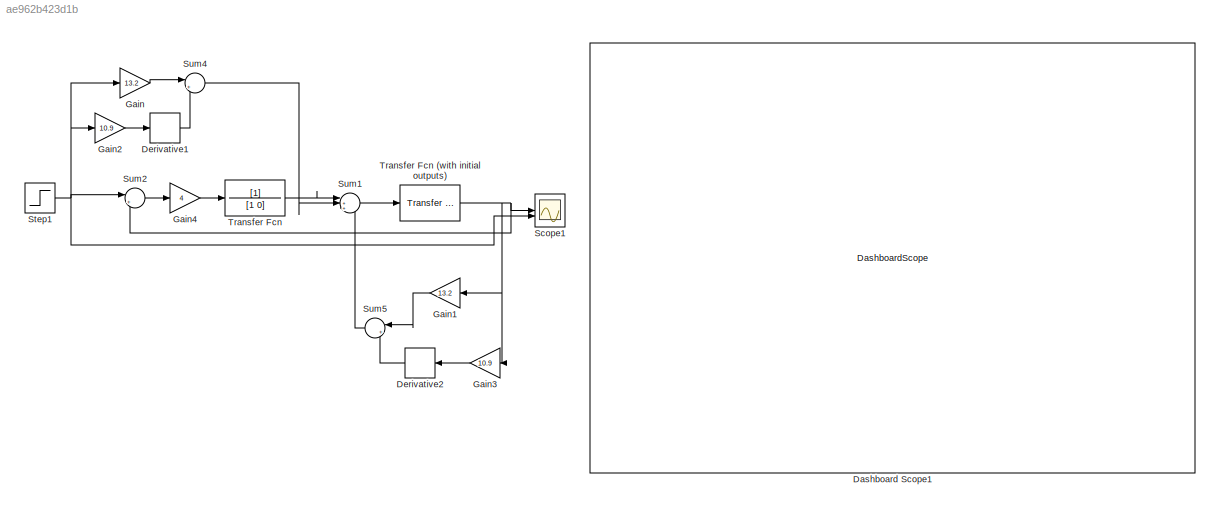
MODEL slx_ae962b423d1b
KIND model
CONFIG AbsTol = auto
CONFIG EnableMultiTasking = off
CONFIG FixedStep = auto
CONFIG MaxStep = auto
CONFIG MinStep = auto
CONFIG RelTol = 1e-3
CONFIG SampleTimeConstraint = Unconstrained
CONFIG SolverName = VariableStepAuto
CONFIG StartTime = 0.0
CONFIG StopTime = 35
BLOCK [DashboardScope] Dashboard Scope1
BLOCK [Derivative] Derivative1
BLOCK [Derivative] Derivative2
  NameLocation = top
BLOCK [Gain] Gain
  Gain = 13.2
BLOCK [Gain] Gain1
  Gain = 13.2
  NameLocation = top
BLOCK [Gain] Gain2
  Gain = 10.9
BLOCK [Gain] Gain3
  Gain = 10.9
  NameLocation = top
BLOCK [Gain] Gain4
  Gain = 4
BLOCK [Scope] Scope1
  Floating = off
  NumInputPorts = 2
  ScopeSpecificationString = Simulink.scopes.TimeScopeBlockCfg('CurrentConfiguration', extmgr.ConfigurationSet(extmgr.Configuration('Core','General UI',true,'FigureColor',[1 1 1]),extmgr.Configuration('Core','Source UI',true),extmgr.Configuration('Sources','WiredSimulink',true),extmgr.Configuration('Visuals','Time Domain',true,'SerializedDisplays',{struct('MinYLimReal','-0.15377','MaxYLimReal','1.38397','YLabelReal','','MinYL...<+1610ch>
BLOCK [Step] Step1
  SampleTime = 0
BLOCK [Sum] Sum1
  Inputs = |++-
BLOCK [Sum] Sum2
  Inputs = |+-
BLOCK [Sum] Sum4
  Inputs = |++
BLOCK [Sum] Sum5
  Inputs = |++
  NameLocation = top
BLOCK [TransferFcn] Transfer Fcn
  Denominator = [1 0]
BLOCK [Reference] Transfer Fcn (with initial outputs)  REF=simulink_extras/Additional
Linear/Transfer Fcn
(with initial outputs)
  SourceBlock = simulink_extras/Additional\nLinear/Transfer Fcn\n(with initial outputs)
  SourceType = Transfer Function with Initial Outputs
LINE Derivative1:1 -> Sum4:2
LINE Derivative2:1 -> Sum5:2
LINE Gain1:1 -> Sum5:1
LINE Gain2:1 -> Derivative1:1
LINE Gain3:1 -> Derivative2:1
LINE Gain4:1 -> Transfer Fcn:1
LINE Gain:1 -> Sum4:1
NET Step1:1 -> Gain2:1, Gain:1, Scope1:2, Sum2:1
LINE Sum1:1 -> Transfer Fcn (with initial outputs):1
LINE Sum2:1 -> Gain4:1
LINE Sum4:1 -> Sum1:2
LINE Sum5:1 -> Sum1:3
NET Transfer Fcn (with initial outputs):1 -> Gain1:1, Gain3:1, Scope1:1, Sum2:2
LINE Transfer Fcn:1 -> Sum1:1
note: NET lines group one-source signal fan-out (src -> all destinations, sorted); 1:1 wires keep LINE
